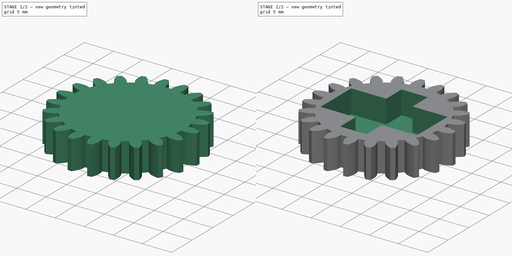
[diagram: build sequence overview — one tinted view per stage of 2, left to right]
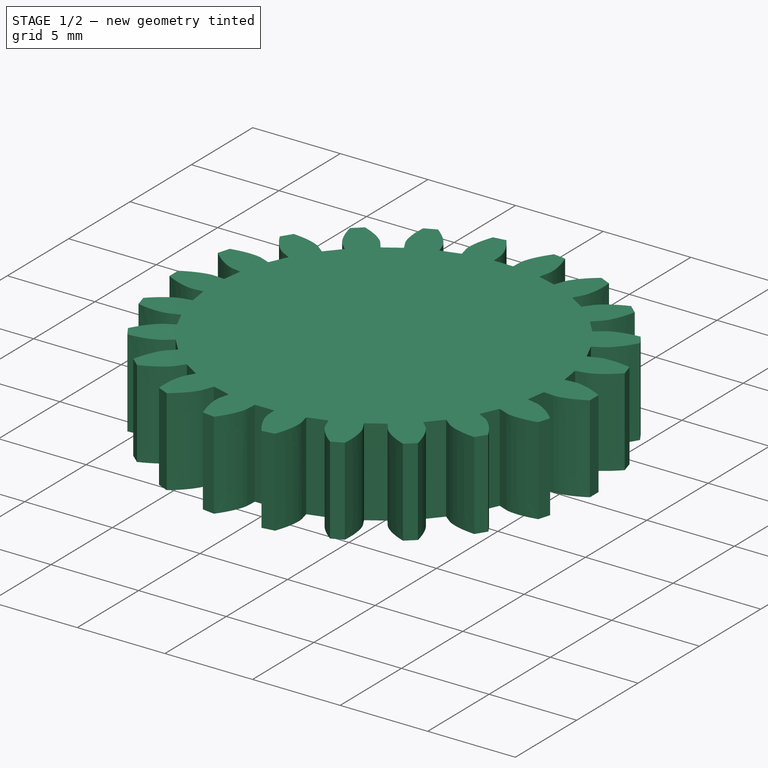
[diagram: stage 1 of 2 — iso view after this stage's code; geometry added in this stage tinted green]
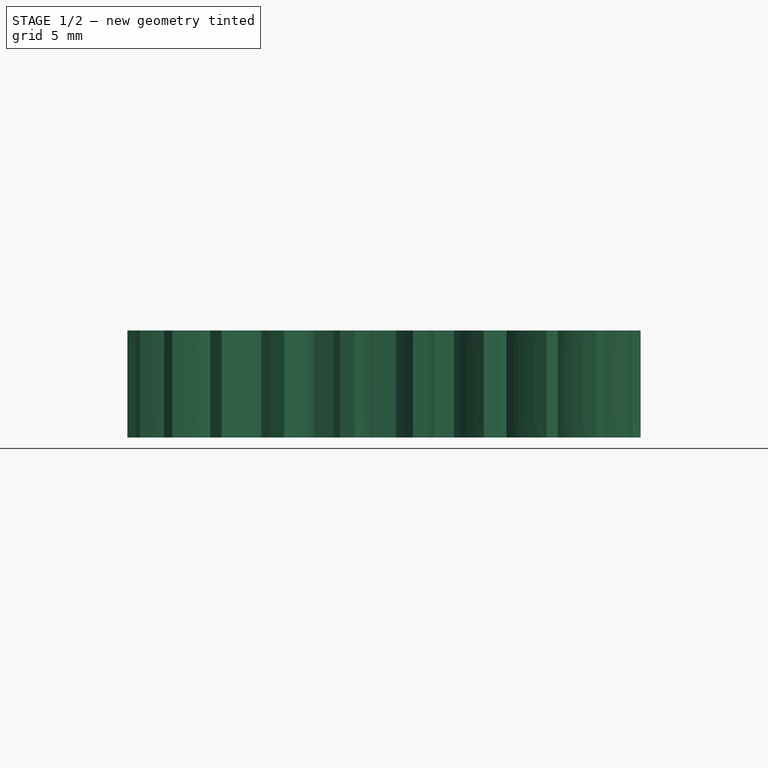
[diagram: stage 1 of 2 — front view after this stage's code; geometry added in this stage tinted green]
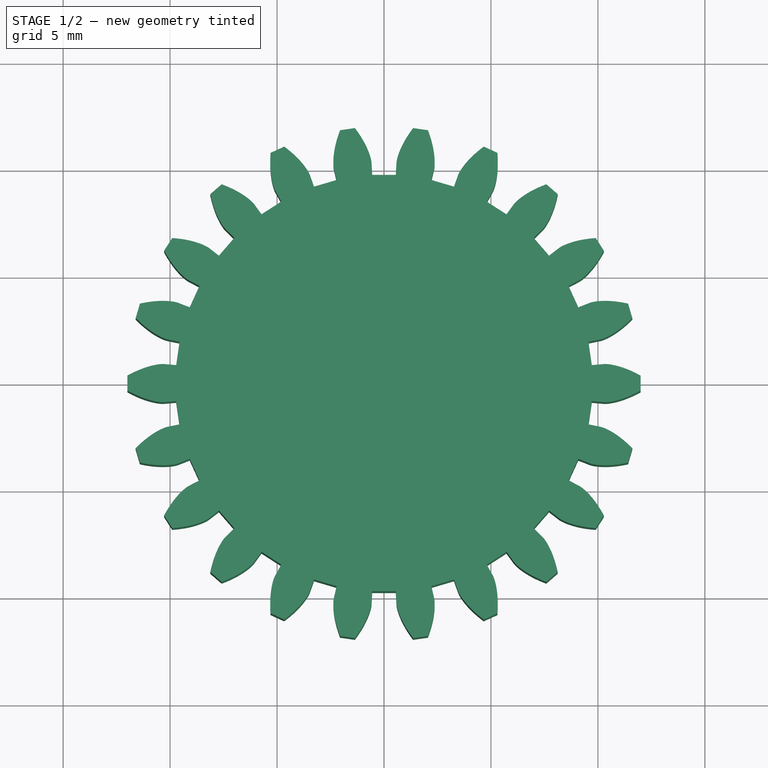
[diagram: stage 1 of 2 — top view after this stage's code; geometry added in this stage tinted green]
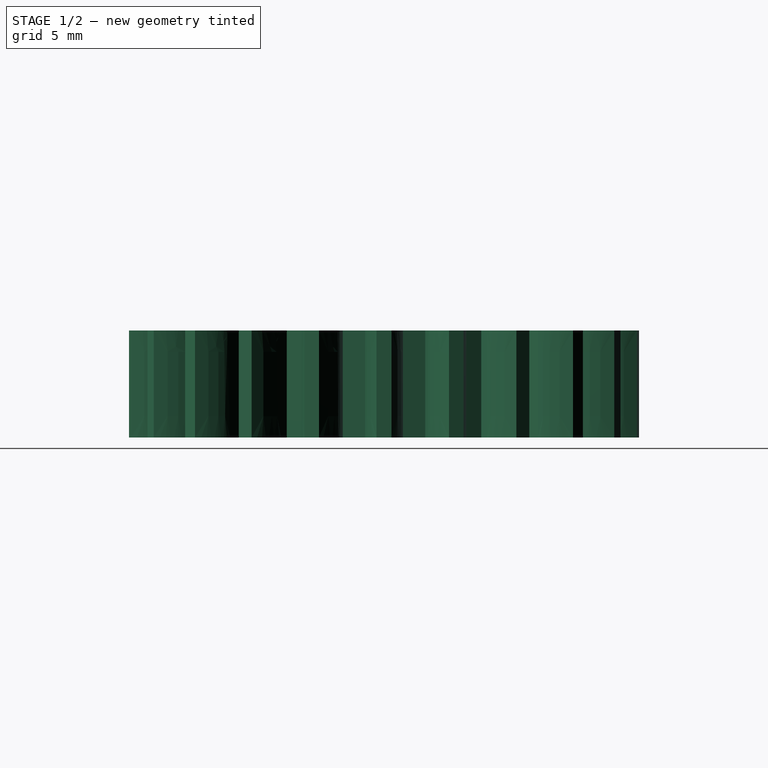
[diagram: stage 1 of 2 — right view after this stage's code; geometry added in this stage tinted green]
FCSTD DOCUMENT  (FreeCAD 0.19R)
Label: z-axis-gear
License: All rights reserved
LicenseURL: http://en.wikipedia.org/wiki/All_rights_reserved
objects: PartDesign::FeaturePython×1, Sketcher::SketchObject×1, PartDesign::Pocket×1, PartDesign::Body×1
note: 5 computed .brp shape members not serialized (recipe doc carries the construction recipe); baked Part::Feature solids carry a one-line shape summary decoded from their .brp

FEATURE [PartDesign::FeaturePython] involutegear  # WARN: FeaturePython — macro-defined, semantics opaque (R4)
  AttacherType = Attacher::AttachEngine3D
  backlash = 0
  beta = 0
  clearance = 0.25
  da = 24
  df = 19.5
  double_helix = false
  dw = 22
  head = 0
  height = 5
  module = 1
  numpoints = 6
  pressure_angle = 20
  properties_from_tool = false
  reversed_backlash = false
  shift = 0
  simple = false
  teeth = 22
  transverse_pitch = 3.14159
  undercut = false
  version = 0.0.3
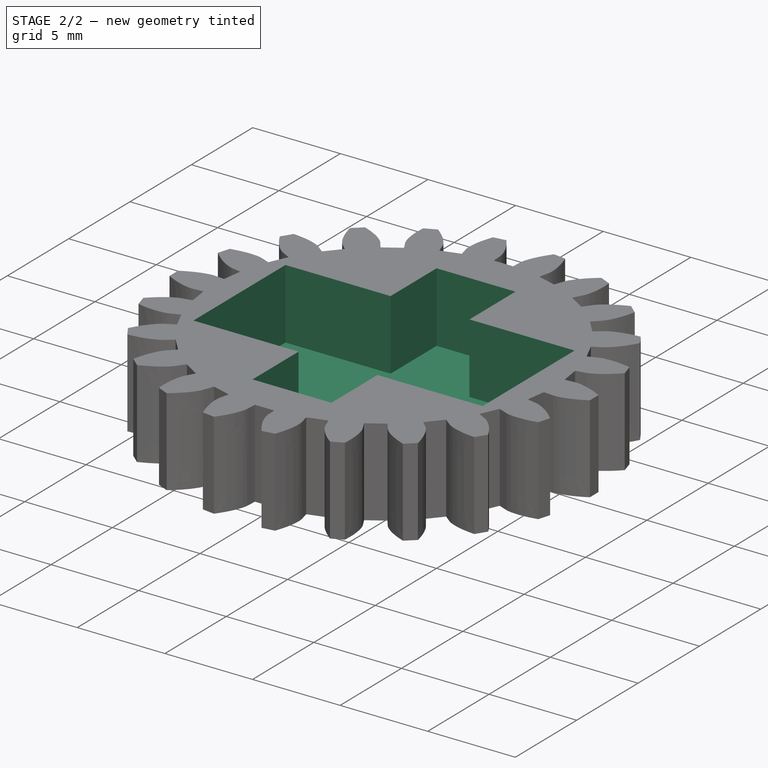
[diagram: stage 2 of 2 — iso view after this stage's code; geometry added in this stage tinted green]
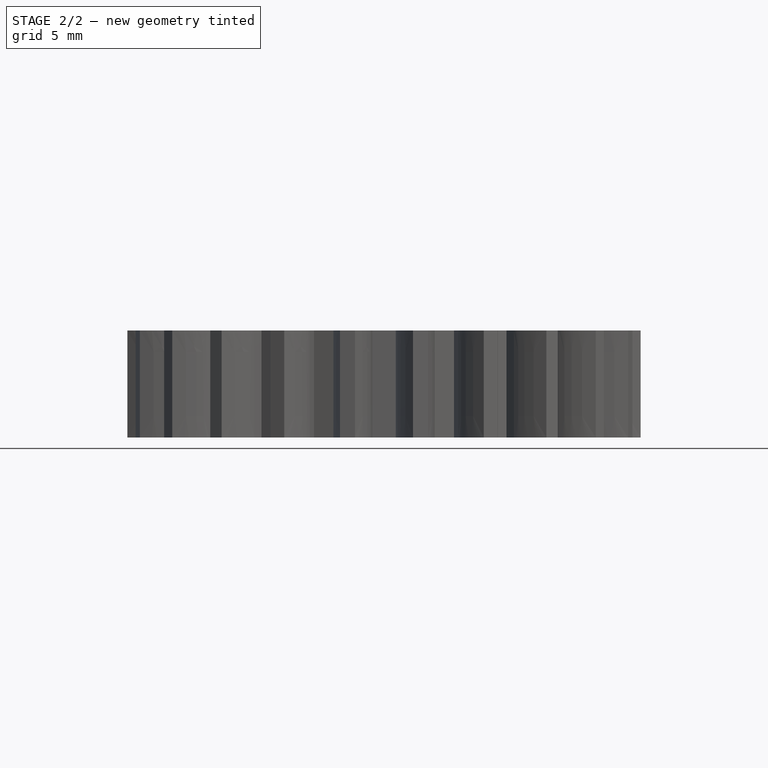
[diagram: stage 2 of 2 — front view after this stage's code; geometry added in this stage tinted green]
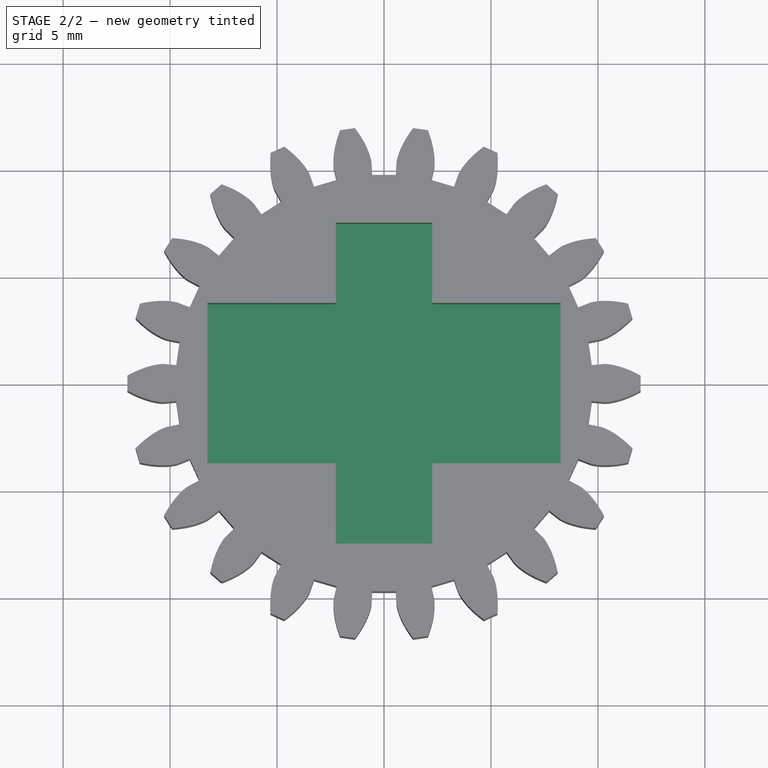
[diagram: stage 2 of 2 — top view after this stage's code; geometry added in this stage tinted green]
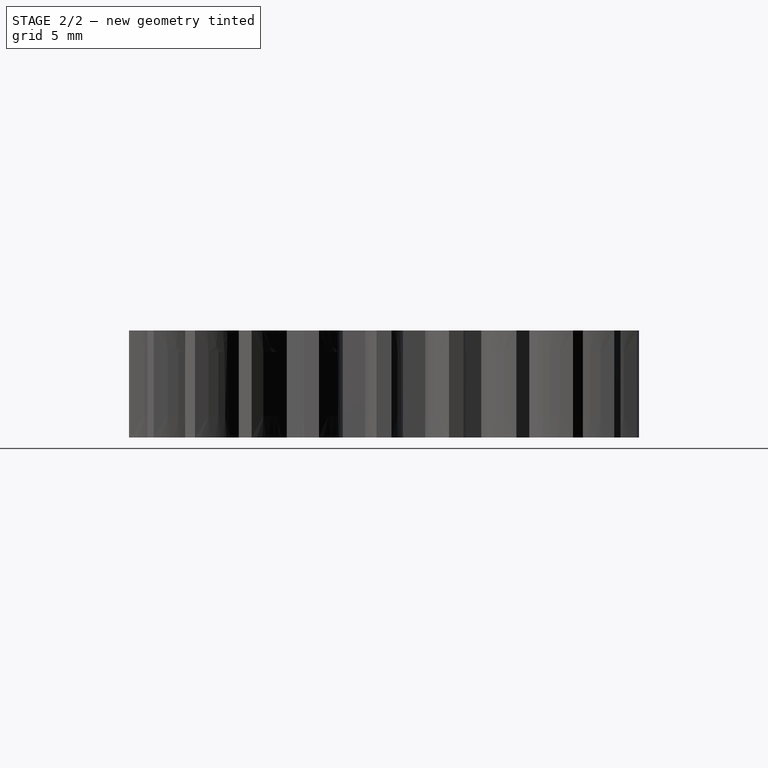
[diagram: stage 2 of 2 — right view after this stage's code; geometry added in this stage tinted green]
FEATURE [Sketcher::SketchObject] Sketch
  FullyConstrained = true
  MapMode = 5
  Placement = pos=(0,0,5) rot=(0,0,1;0rad)
  Support = -> [involutegear]
  sketch-geometry (14):
    g0: LineSegment StartX=-8.25 StartY=3.75 StartZ=0 EndX=-2.25 EndY=3.75 EndZ=0
    g1: LineSegment StartX=8.25 StartY=3.75 StartZ=0 EndX=8.25 EndY=-3.75 EndZ=0
    g2: LineSegment StartX=8.25 StartY=-3.75 StartZ=0 EndX=2.25 EndY=-3.75 EndZ=0
    g3: LineSegment StartX=-8.25 StartY=-3.75 StartZ=0 EndX=-8.25 EndY=3.75 EndZ=0
    g4: LineSegment StartX=-2.25 StartY=7.5 StartZ=0 EndX=2.25 EndY=7.5 EndZ=0
    g5: LineSegment StartX=2.25 StartY=7.5 StartZ=0 EndX=2.25 EndY=3.75 EndZ=0
    g6: LineSegment StartX=2.25 StartY=-7.5 StartZ=0 EndX=-2.25 EndY=-7.5 EndZ=0
    g7: LineSegment StartX=-2.25 StartY=-7.5 StartZ=0 EndX=-2.25 EndY=-3.75 EndZ=0
    g8: LineSegment StartX=-2.25 StartY=3.75 StartZ=0 EndX=-2.25 EndY=7.5 EndZ=0
    g9: LineSegment StartX=2.25 StartY=-3.75 StartZ=0 EndX=2.25 EndY=-7.5 EndZ=0
    g10: LineSegment StartX=2.25 StartY=3.75 StartZ=0 EndX=8.25 EndY=3.75 EndZ=0
    g11: LineSegment StartX=-2.25 StartY=-3.75 StartZ=0 EndX=-8.25 EndY=-3.75 EndZ=0
    g12: LineSegment StartX=-2.25 StartY=-3.75 StartZ=0 EndX=2.25 EndY=3.75 EndZ=0
    g13: LineSegment StartX=2.25 StartY=-3.75 StartZ=0 EndX=-2.25 EndY=3.75 EndZ=0
  constraints (36):
    c: Coincident(g10,g1)
    c: Coincident(g1,g2)
    c: Coincident(g11,g3)
    c: Coincident(g3,g0)
    c: Horizontal(g0)
    c: Horizontal(g2)
    c: Vertical(g1)
    c: Vertical(g3)
    c: Coincident(g4,g5)
    c: Coincident(g9,g6)
    c: Coincident(g6,g7)
    c: Coincident(g8,g4)
    c: Horizontal(g4)
    c: Horizontal(g6)
    c: Vertical(g5)
    c: Vertical(g7)
    c: Tangent(g7,g8)
    c: Tangent(g5,g9)
    c: Coincident(g0,g8)
    c: Coincident(g10,g5)
    c: Tangent(g0,g10)
    c: Coincident(g2,g9)
    c: Coincident(g11,g7)
    c: Tangent(g2,g11)
    c: Equal(g0,g10)
    c: Equal(g8,g7)
    c: DistanceX(g0,g1) = 16.5
    c: Coincident(g12,g7)
    c: Coincident(g12,g5)
    c: Coincident(g13,g2)
    c: Coincident(g13,g0)
    c: PointOnObject(g-1,g13)
    c: PointOnObject(g-1,g12)
    c: DistanceY(g6,g4) = 15
    c: DistanceY(g1,g1) = 7.5
    c: DistanceX(g6,g6) = 4.5
FEATURE [PartDesign::Pocket] Pocket
  BaseFeature = -> involutegear
  Length = 4
  Length2 = 100
  Profile = -> Sketch
  Type = 0
FEATURE [PartDesign::Body] Body
  Group = -> [involutegear,Sketch,Pocket]
  Origin = -> Origin
  Tip = -> Pocket
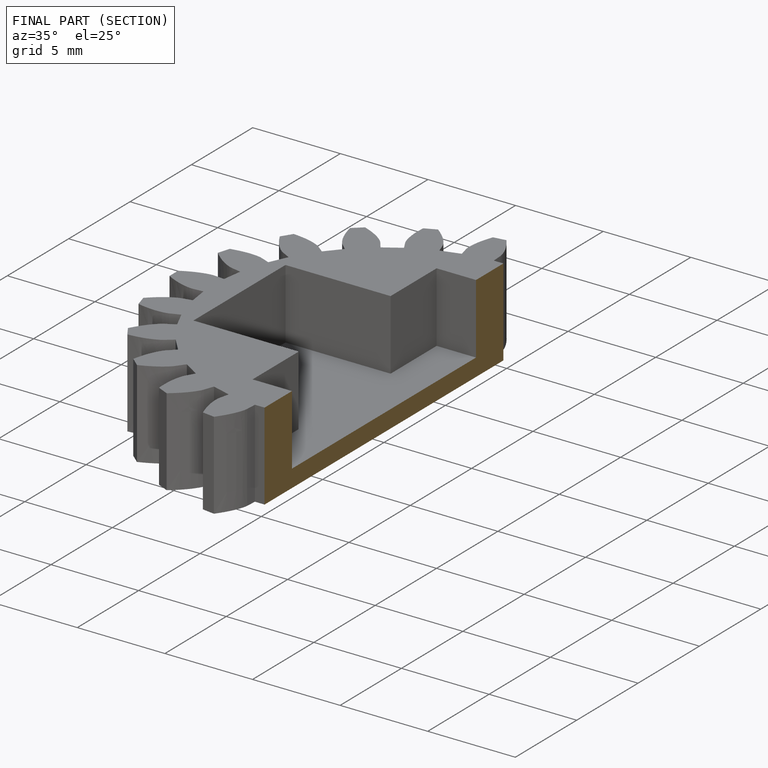
[diagram: finished part — half-section view (interior)]
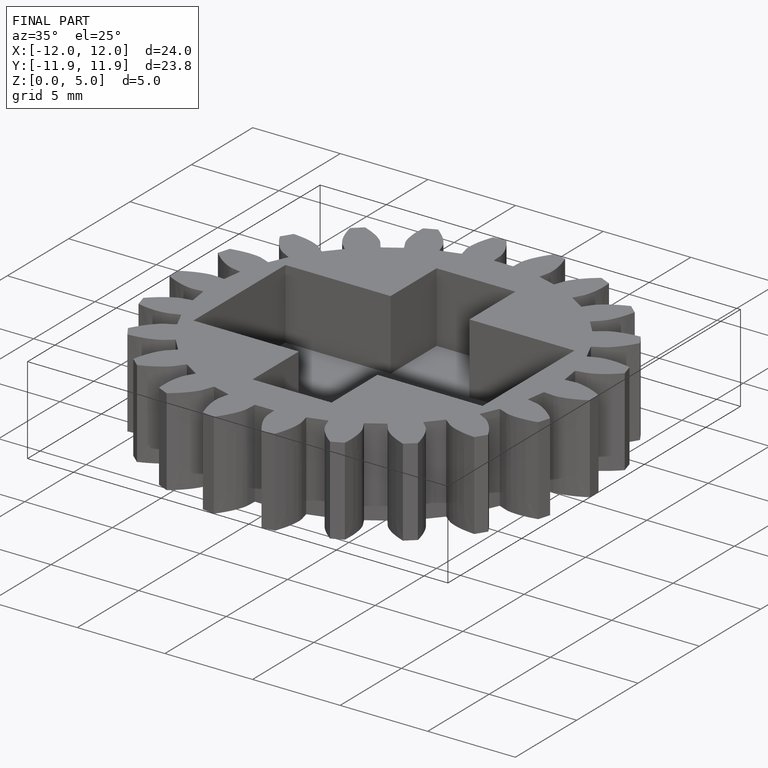
[diagram: finished part — iso view with bounding-box wireframe]
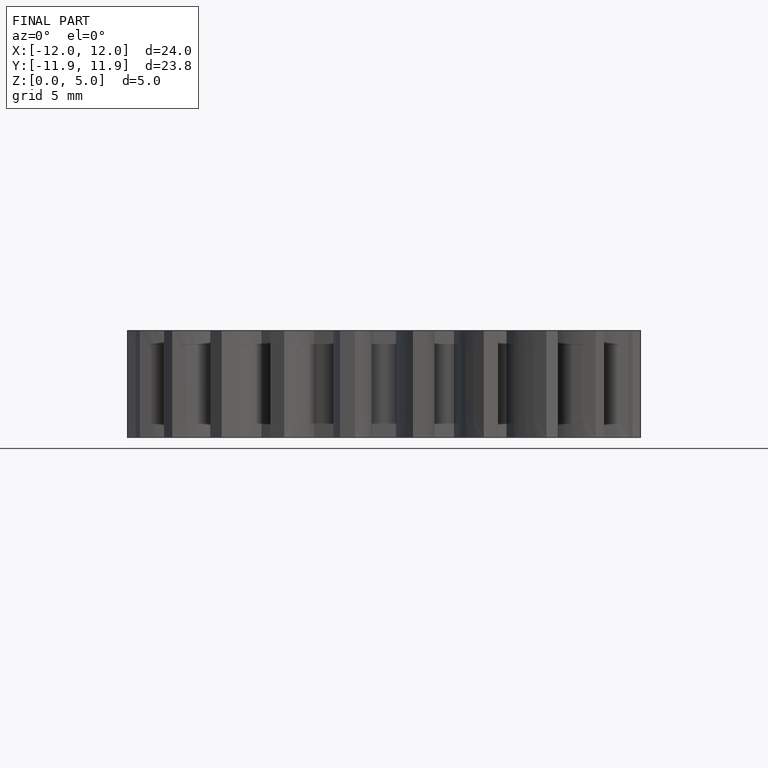
[diagram: finished part — front view with bounding-box wireframe]
